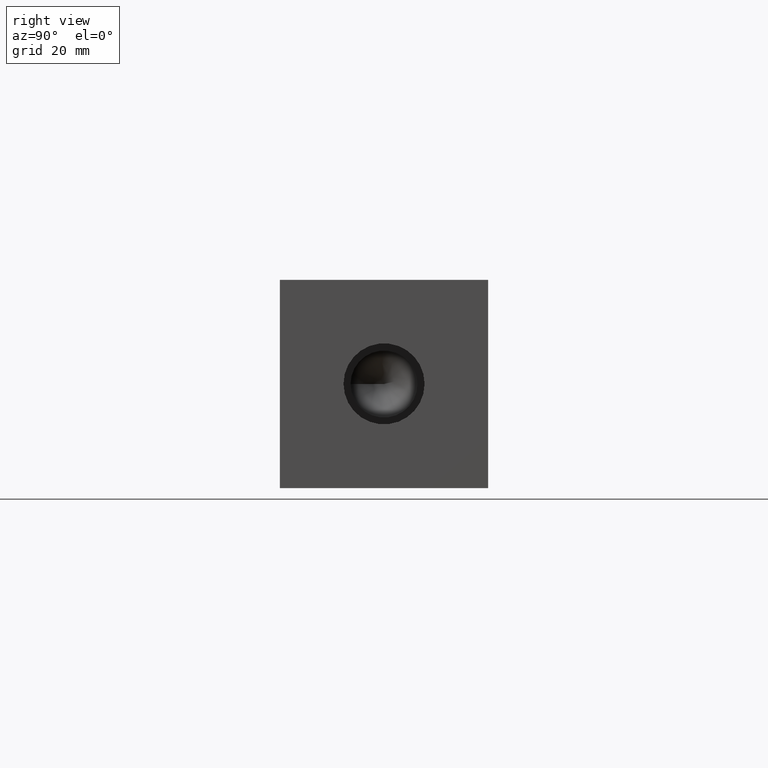
[diagram: clean part render]
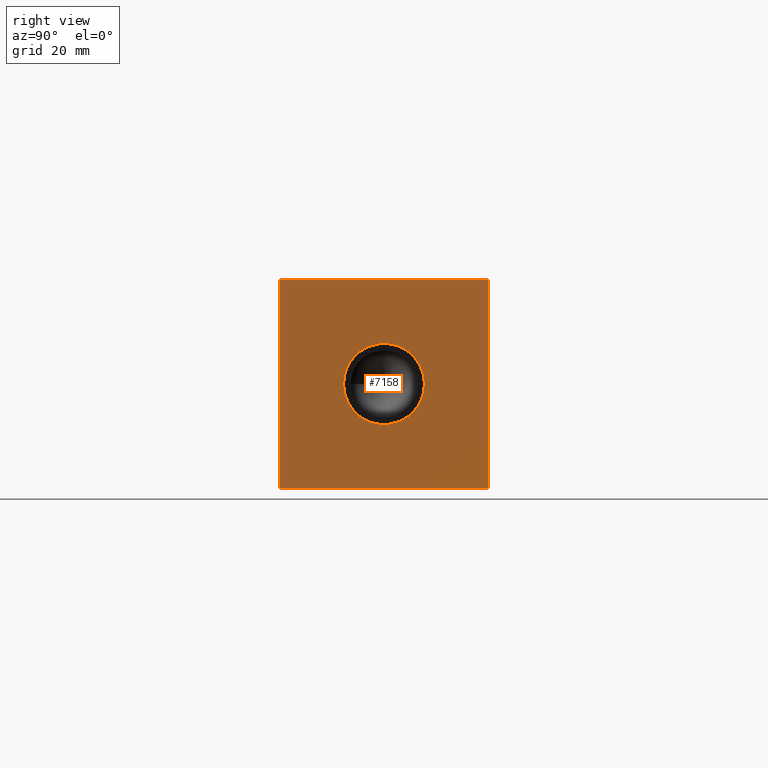
[diagram: same view with one face highlighted and labeled with its STEP entity id]
A machine part, right view. The second image highlights one B-rep face of the part: STEP entity #7158.
In plain terms, the highlighted planar face has unit normal (1, 0, 0).
Its self-contained STEP definition (entity closure, byte-faithful):
#90=CIRCLE('',#7451,8.6487);
#91=CIRCLE('',#7452,8.6487);
#440=FACE_BOUND('',#1212,.T.);
#805=FACE_OUTER_BOUND('',#1211,.T.);
#1211=EDGE_LOOP('',(#6224,#6225,#6226,#6227));
#1212=EDGE_LOOP('',(#6228,#6229));
#1601=LINE('',#9841,#2321);
#1939=LINE('',#12110,#2659);
#1940=LINE('',#12113,#2660);
#1941=LINE('',#12114,#2661);
#2321=VECTOR('',#8168,10.);
#2659=VECTOR('',#8924,10.);
#2660=VECTOR('',#8927,10.);
#2661=VECTOR('',#8928,10.);
#2926=VERTEX_POINT('',#9838);
#2927=VERTEX_POINT('',#9840);
#3279=VERTEX_POINT('',#11974);
#3280=VERTEX_POINT('',#11975);
#3321=VERTEX_POINT('',#12108);
#3322=VERTEX_POINT('',#12112);
#3717=EDGE_CURVE('',#2926,#2927,#1601,.T.);
#4231=EDGE_CURVE('',#3279,#3280,#90,.T.);
#4232=EDGE_CURVE('',#3280,#3279,#91,.T.);
#4297=EDGE_CURVE('',#3321,#2927,#1939,.T.);
#4298=EDGE_CURVE('',#3322,#3321,#1940,.T.);
#4299=EDGE_CURVE('',#3322,#2926,#1941,.T.);
#6224=ORIENTED_EDGE('',*,*,#4298,.T.);
#6225=ORIENTED_EDGE('',*,*,#4297,.T.);
#6226=ORIENTED_EDGE('',*,*,#3717,.F.);
#6227=ORIENTED_EDGE('',*,*,#4299,.F.);
#6228=ORIENTED_EDGE('',*,*,#4231,.T.);
#6229=ORIENTED_EDGE('',*,*,#4232,.T.);
#6491=PLANE('',#7518);
#7158=ADVANCED_FACE('',(#805,#440),#6491,.T.);
#7451=AXIS2_PLACEMENT_3D('',#11976,#8764,#8765);
#7452=AXIS2_PLACEMENT_3D('',#11977,#8766,#8767);
#7518=AXIS2_PLACEMENT_3D('',#12111,#8925,#8926);
#8168=DIRECTION('',(0.,1.,0.));
#8764=DIRECTION('center_axis',(-1.,0.,0.));
#8765=DIRECTION('ref_axis',(0.,1.,0.));
#8766=DIRECTION('center_axis',(-1.,0.,0.));
#8767=DIRECTION('ref_axis',(0.,1.,0.));
#8924=DIRECTION('',(0.,0.,1.));
#8925=DIRECTION('center_axis',(1.,0.,0.));
#8926=DIRECTION('ref_axis',(0.,1.,0.));
#8927=DIRECTION('',(0.,1.,0.));
#8928=DIRECTION('',(0.,0.,1.));
#9838=CARTESIAN_POINT('',(142.875,0.,44.45));
#9840=CARTESIAN_POINT('',(142.875,44.45,44.45));
#9841=CARTESIAN_POINT('',(142.875,0.,44.45));
#11974=CARTESIAN_POINT('',(142.875,30.8737,22.225));
#11975=CARTESIAN_POINT('',(142.875,13.5763,22.225));
#11976=CARTESIAN_POINT('Origin',(142.875,22.225,22.225));
#11977=CARTESIAN_POINT('Origin',(142.875,22.225,22.225));
#12108=CARTESIAN_POINT('',(142.875,44.45,0.));
#12110=CARTESIAN_POINT('',(142.875,44.45,0.));
#12111=CARTESIAN_POINT('Origin',(142.875,0.,0.));
#12112=CARTESIAN_POINT('',(142.875,0.,0.));
#12113=CARTESIAN_POINT('',(142.875,0.,0.));
#12114=CARTESIAN_POINT('',(142.875,0.,0.));